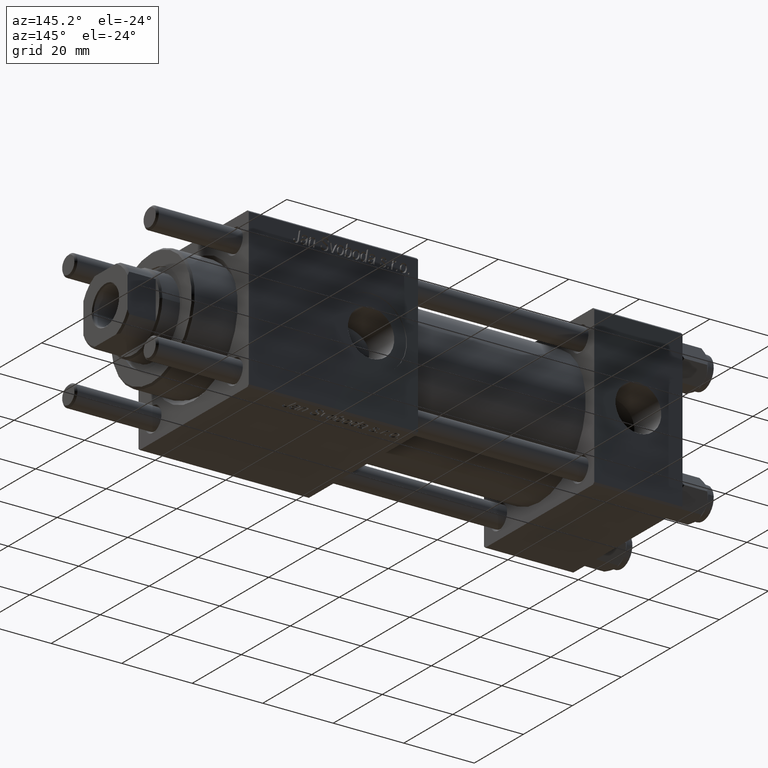
[diagram: clean part render]
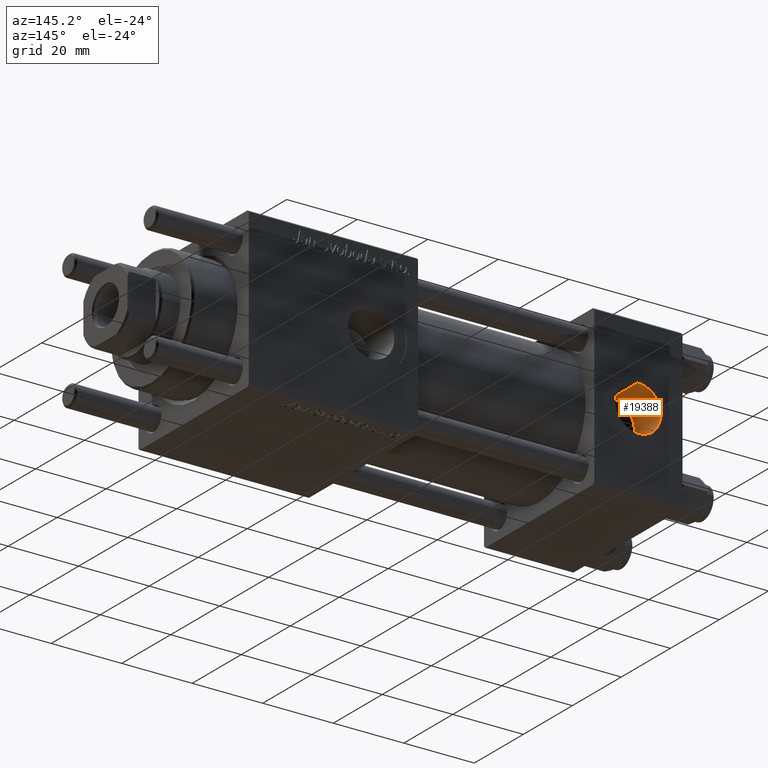
[diagram: same view with one face highlighted and labeled with its STEP entity id]
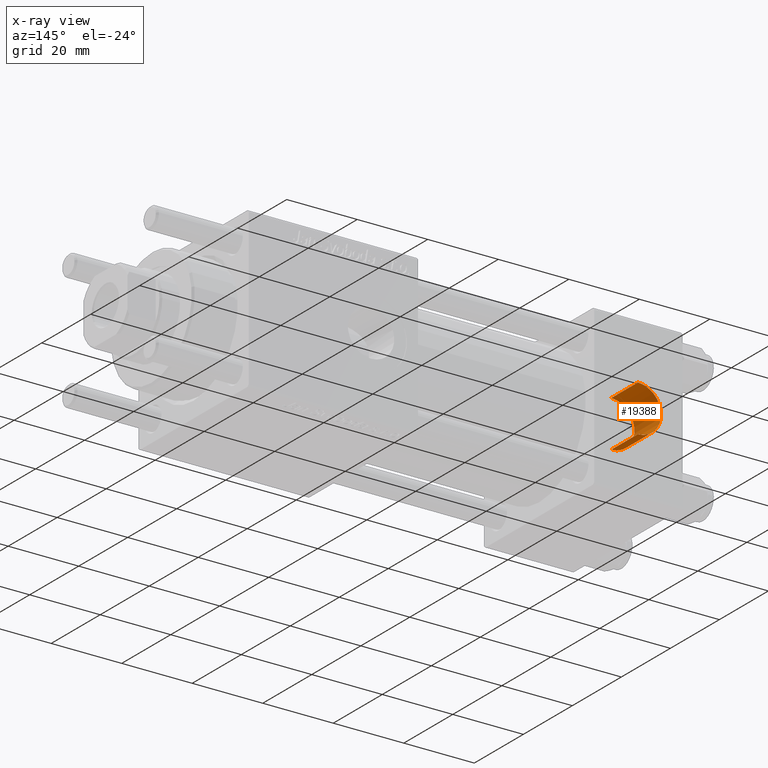
[diagram: x-ray of the same camera — body ghosted, the highlighted face saturated]
A machine part, auxiliary view. The second image highlights one B-rep face of the part: STEP entity #19388.
The next image is the same camera in x-ray: the body ghosted, the highlighted face saturated — about 0% of this face is hidden behind the body in this view.
In plain terms, the highlighted cylindrical surface (edge-blend (fillet) strip) has radius 6.58 mm, axis along (0, 1, 0).
Its self-contained STEP definition (entity closure, byte-faithful):
#1187 = VERTEX_POINT ( 'NONE', #25327 ) ;
#2233 = CIRCLE ( 'NONE', #16872, 6.579999999999998295 ) ;
#3700 = DIRECTION ( 'NONE',  ( -0.000000000000000000, -1.000000000000000000, -0.000000000000000000 ) ) ;
#5598 = EDGE_CURVE ( 'NONE', #45775, #15321, #9303, .T. ) ;
#5781 = VECTOR ( 'NONE', #52975, 1000.000000000000000 ) ;
#7440 = CARTESIAN_POINT ( 'NONE',  ( 12.50000000000000000, 11.43999999999999773, 0.000000000000000000 ) ) ;
#8899 = DIRECTION ( 'NONE',  ( 0.000000000000000000, 1.000000000000000000, 0.000000000000000000 ) ) ;
#8997 = ORIENTED_EDGE ( 'NONE', *, *, #5598, .T. ) ;
#9303 = LINE ( 'NONE', #56714, #5781 ) ;
#10576 = EDGE_CURVE ( 'NONE', #1187, #52108, #18812, .T. ) ;
#15321 = VERTEX_POINT ( 'NONE', #25572 ) ;
#16872 = AXIS2_PLACEMENT_3D ( 'NONE', #7440, #3700, #24955 ) ;
#18812 = LINE ( 'NONE', #44386, #46883 ) ;
#19388 = ADVANCED_FACE ( 'NONE', ( #43205 ), #52110, .F. ) ;
#24176 = CARTESIAN_POINT ( 'NONE',  ( 12.50000000000000000, 11.43999999999999773, -6.579999999999998295 ) ) ;
#24955 = DIRECTION ( 'NONE',  ( 0.000000000000000000, 0.000000000000000000, 1.000000000000000000 ) ) ;
#25048 = EDGE_LOOP ( 'NONE', ( #52837, #8997, #28168, #35816 ) ) ;
#25327 = CARTESIAN_POINT ( 'NONE',  ( 12.50000000000000000, 11.43999999999999773, 6.579999999999998295 ) ) ;
#25572 = CARTESIAN_POINT ( 'NONE',  ( 12.50000000000000000, 22.30000000000000071, -6.579999999999998295 ) ) ;
#28168 = ORIENTED_EDGE ( 'NONE', *, *, #49250, .T. ) ;
#29793 = CIRCLE ( 'NONE', #45409, 6.579999999999998295 ) ;
#30428 = DIRECTION ( 'NONE',  ( 0.000000000000000000, 0.000000000000000000, 1.000000000000000000 ) ) ;
#34292 = CARTESIAN_POINT ( 'NONE',  ( 12.50000000000000000, 11.50000000000000000, 0.000000000000000000 ) ) ;
#34579 = CARTESIAN_POINT ( 'NONE',  ( 12.50000000000000000, 22.30000000000000071, 6.579999999999998295 ) ) ;
#35816 = ORIENTED_EDGE ( 'NONE', *, *, #10576, .F. ) ;
#36342 = DIRECTION ( 'NONE',  ( -0.000000000000000000, 1.000000000000000000, -0.000000000000000000 ) ) ;
#39058 = CARTESIAN_POINT ( 'NONE',  ( 12.50000000000000000, 22.30000000000000071, 0.000000000000000000 ) ) ;
#42639 = DIRECTION ( 'NONE',  ( 0.000000000000000000, 0.000000000000000000, 1.000000000000000000 ) ) ;
#43205 = FACE_OUTER_BOUND ( 'NONE', #25048, .T. ) ;
#44386 = CARTESIAN_POINT ( 'NONE',  ( 12.50000000000000000, 11.50000000000000000, 6.579999999999998295 ) ) ;
#45409 = AXIS2_PLACEMENT_3D ( 'NONE', #39058, #8899, #30428 ) ;
#45775 = VERTEX_POINT ( 'NONE', #24176 ) ;
#46771 = EDGE_CURVE ( 'NONE', #1187, #45775, #2233, .T. ) ;
#46883 = VECTOR ( 'NONE', #36342, 1000.000000000000000 ) ;
#49250 = EDGE_CURVE ( 'NONE', #15321, #52108, #29793, .T. ) ;
#49799 = AXIS2_PLACEMENT_3D ( 'NONE', #34292, #55849, #42639 ) ;
#52108 = VERTEX_POINT ( 'NONE', #34579 ) ;
#52110 = CYLINDRICAL_SURFACE ( 'NONE', #49799, 6.579999999999998295 ) ;
#52837 = ORIENTED_EDGE ( 'NONE', *, *, #46771, .T. ) ;
#52975 = DIRECTION ( 'NONE',  ( -0.000000000000000000, 1.000000000000000000, -0.000000000000000000 ) ) ;
#55849 = DIRECTION ( 'NONE',  ( -0.000000000000000000, 1.000000000000000000, -0.000000000000000000 ) ) ;
#56714 = CARTESIAN_POINT ( 'NONE',  ( 12.50000000000000000, 11.50000000000000000, -6.579999999999998295 ) ) ;